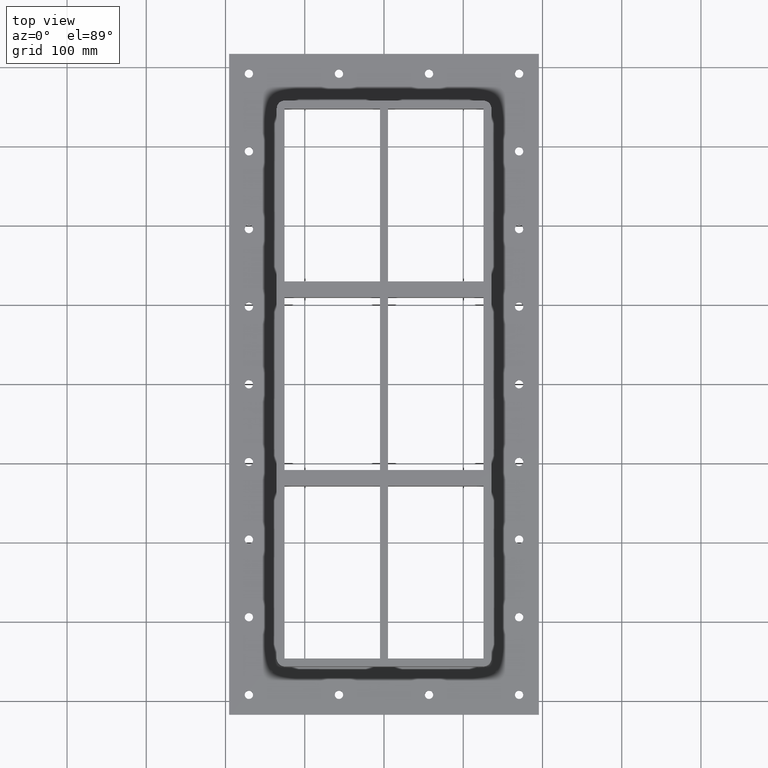
[diagram: clean part render]
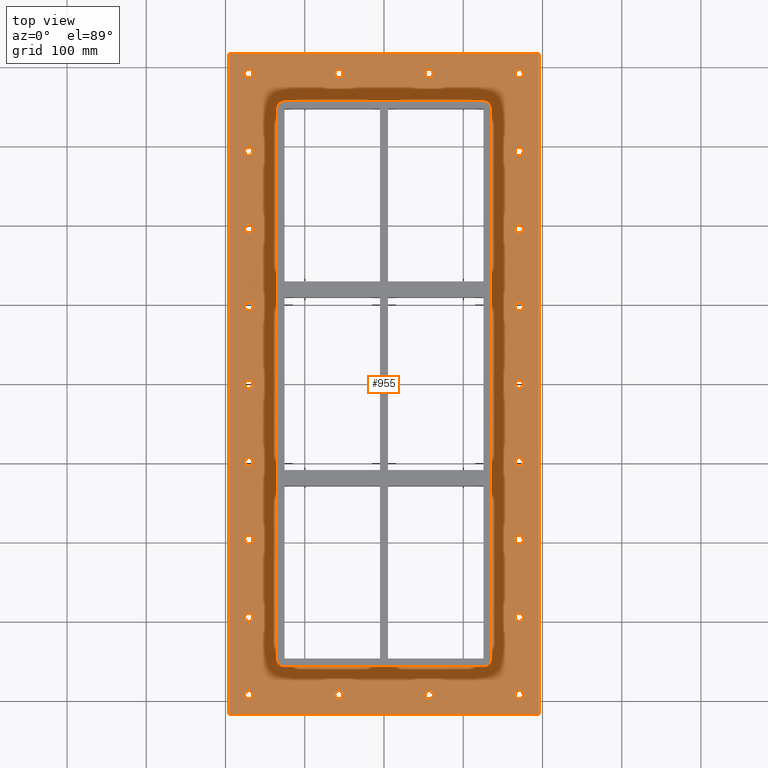
[diagram: same view with one face highlighted and labeled with its STEP entity id]
A machine part, top view. The second image highlights one B-rep face of the part: STEP entity #955.
In plain terms, the highlighted planar face has unit normal (0, 0, 1).
Its self-contained STEP definition (entity closure, byte-faithful):
#84=CARTESIAN_POINT('',(-51.583333333333314,-392.0,-17.000000000000007));
#85=VERTEX_POINT('',#84);
#86=CARTESIAN_POINT('',(-56.8333333333333,-392.0,-17.000000000000028));
#87=DIRECTION('',(0.0,0.0,-1.0));
#88=DIRECTION('',(1.0,0.0,0.0));
#89=AXIS2_PLACEMENT_3D('',#86,#87,#88);
#90=CIRCLE('',#89,5.25);
#91=EDGE_CURVE('',#85,#85,#90,.T.);
#112=CARTESIAN_POINT('',(62.083333333333357,-392.0,-17.000000000000007));
#113=VERTEX_POINT('',#112);
#114=CARTESIAN_POINT('',(56.833333333333371,-392.0,-17.000000000000028));
#115=DIRECTION('',(0.0,0.0,-1.0));
#116=DIRECTION('',(1.0,0.0,0.0));
#117=AXIS2_PLACEMENT_3D('',#114,#115,#116);
#118=CIRCLE('',#117,5.25);
#119=EDGE_CURVE('',#113,#113,#118,.T.);
#140=CARTESIAN_POINT('',(62.083333333333215,392.0,-17.000000000000007));
#141=VERTEX_POINT('',#140);
#142=CARTESIAN_POINT('',(56.833333333333229,392.0,-17.000000000000028));
#143=DIRECTION('',(0.0,0.0,-1.0));
#144=DIRECTION('',(1.0,0.0,0.0));
#145=AXIS2_PLACEMENT_3D('',#142,#143,#144);
#146=CIRCLE('',#145,5.25);
#147=EDGE_CURVE('',#141,#141,#146,.T.);
#168=CARTESIAN_POINT('',(-51.583333333333456,392.0,-17.000000000000007));
#169=VERTEX_POINT('',#168);
#170=CARTESIAN_POINT('',(-56.833333333333442,392.0,-17.000000000000028));
#171=DIRECTION('',(0.0,0.0,-1.0));
#172=DIRECTION('',(1.0,0.0,0.0));
#173=AXIS2_PLACEMENT_3D('',#170,#171,#172);
#174=CIRCLE('',#173,5.25);
#175=EDGE_CURVE('',#169,#169,#174,.T.);
#196=CARTESIAN_POINT('',(175.75,-294.00000000000011,-17.000000000000007));
#197=VERTEX_POINT('',#196);
#198=CARTESIAN_POINT('',(170.5,-294.00000000000011,-17.000000000000028));
#199=DIRECTION('',(0.0,0.0,-1.0));
#200=DIRECTION('',(1.0,0.0,0.0));
#201=AXIS2_PLACEMENT_3D('',#198,#199,#200);
#202=CIRCLE('',#201,5.25);
#203=EDGE_CURVE('',#197,#197,#202,.T.);
#224=CARTESIAN_POINT('',(175.75,-195.99999999999997,-17.000000000000007));
#225=VERTEX_POINT('',#224);
#226=CARTESIAN_POINT('',(170.5,-195.99999999999997,-17.000000000000028));
#227=DIRECTION('',(0.0,0.0,-1.0));
#228=DIRECTION('',(1.0,0.0,0.0));
#229=AXIS2_PLACEMENT_3D('',#226,#227,#228);
#230=CIRCLE('',#229,5.25);
#231=EDGE_CURVE('',#225,#225,#230,.T.);
#252=CARTESIAN_POINT('',(175.74999999999994,-98.0,-17.000000000000007));
#253=VERTEX_POINT('',#252);
#254=CARTESIAN_POINT('',(170.49999999999997,-98.0,-17.000000000000028));
#255=DIRECTION('',(0.0,0.0,-1.0));
#256=DIRECTION('',(1.0,0.0,0.0));
#257=AXIS2_PLACEMENT_3D('',#254,#255,#256);
#258=CIRCLE('',#257,5.25);
#259=EDGE_CURVE('',#253,#253,#258,.T.);
#280=CARTESIAN_POINT('',(175.74999999999994,0.0,-17.000000000000007));
#281=VERTEX_POINT('',#280);
#282=CARTESIAN_POINT('',(170.49999999999997,0.0,-17.000000000000028));
#283=DIRECTION('',(0.0,0.0,-1.0));
#284=DIRECTION('',(1.0,0.0,0.0));
#285=AXIS2_PLACEMENT_3D('',#282,#283,#284);
#286=CIRCLE('',#285,5.25);
#287=EDGE_CURVE('',#281,#281,#286,.T.);
#308=CARTESIAN_POINT('',(175.74999999999994,98.0,-17.000000000000007));
#309=VERTEX_POINT('',#308);
#310=CARTESIAN_POINT('',(170.49999999999997,98.0,-17.000000000000028));
#311=DIRECTION('',(0.0,0.0,-1.0));
#312=DIRECTION('',(1.0,0.0,0.0));
#313=AXIS2_PLACEMENT_3D('',#310,#311,#312);
#314=CIRCLE('',#313,5.25);
#315=EDGE_CURVE('',#309,#309,#314,.T.);
#336=CARTESIAN_POINT('',(175.74999999999991,196.0,-17.000000000000007));
#337=VERTEX_POINT('',#336);
#338=CARTESIAN_POINT('',(170.49999999999994,196.0,-17.000000000000028));
#339=DIRECTION('',(0.0,0.0,-1.0));
#340=DIRECTION('',(1.0,0.0,0.0));
#341=AXIS2_PLACEMENT_3D('',#338,#339,#340);
#342=CIRCLE('',#341,5.25);
#343=EDGE_CURVE('',#337,#337,#342,.T.);
#364=CARTESIAN_POINT('',(175.74999999999991,294.0,-17.000000000000007));
#365=VERTEX_POINT('',#364);
#366=CARTESIAN_POINT('',(170.49999999999994,294.0,-17.000000000000028));
#367=DIRECTION('',(0.0,0.0,-1.0));
#368=DIRECTION('',(1.0,0.0,0.0));
#369=AXIS2_PLACEMENT_3D('',#366,#367,#368);
#370=CIRCLE('',#369,5.25);
#371=EDGE_CURVE('',#365,#365,#370,.T.);
#392=CARTESIAN_POINT('',(-165.25000000000009,294.00000000000011,-17.000000000000007));
#393=VERTEX_POINT('',#392);
#394=CARTESIAN_POINT('',(-170.50000000000009,294.00000000000011,-17.000000000000028));
#395=DIRECTION('',(0.0,0.0,-1.0));
#396=DIRECTION('',(1.0,0.0,0.0));
#397=AXIS2_PLACEMENT_3D('',#394,#395,#396);
#398=CIRCLE('',#397,5.25);
#399=EDGE_CURVE('',#393,#393,#398,.T.);
#420=CARTESIAN_POINT('',(-165.25000000000006,195.99999999999997,-17.000000000000007));
#421=VERTEX_POINT('',#420);
#422=CARTESIAN_POINT('',(-170.50000000000006,195.99999999999997,-17.000000000000028));
#423=DIRECTION('',(0.0,0.0,-1.0));
#424=DIRECTION('',(1.0,0.0,0.0));
#425=AXIS2_PLACEMENT_3D('',#422,#423,#424);
#426=CIRCLE('',#425,5.25);
#427=EDGE_CURVE('',#421,#421,#426,.T.);
#448=CARTESIAN_POINT('',(-165.25000000000006,98.0,-17.000000000000007));
#449=VERTEX_POINT('',#448);
#450=CARTESIAN_POINT('',(-170.50000000000006,98.0,-17.000000000000028));
#451=DIRECTION('',(0.0,0.0,-1.0));
#452=DIRECTION('',(1.0,0.0,0.0));
#453=AXIS2_PLACEMENT_3D('',#450,#451,#452);
#454=CIRCLE('',#453,5.25);
#455=EDGE_CURVE('',#449,#449,#454,.T.);
#476=CARTESIAN_POINT('',(-165.25000000000003,0.0,-17.000000000000007));
#477=VERTEX_POINT('',#476);
#478=CARTESIAN_POINT('',(-170.5,0.0,-17.000000000000028));
#479=DIRECTION('',(0.0,0.0,-1.0));
#480=DIRECTION('',(1.0,0.0,0.0));
#481=AXIS2_PLACEMENT_3D('',#478,#479,#480);
#482=CIRCLE('',#481,5.25);
#483=EDGE_CURVE('',#477,#477,#482,.T.);
#504=CARTESIAN_POINT('',(-165.25000000000003,-98.0,-17.000000000000007));
#505=VERTEX_POINT('',#504);
#506=CARTESIAN_POINT('',(-170.5,-98.0,-17.000000000000028));
#507=DIRECTION('',(0.0,0.0,-1.0));
#508=DIRECTION('',(1.0,0.0,0.0));
#509=AXIS2_PLACEMENT_3D('',#506,#507,#508);
#510=CIRCLE('',#509,5.25);
#511=EDGE_CURVE('',#505,#505,#510,.T.);
#532=CARTESIAN_POINT('',(-165.25,-196.0,-17.000000000000007));
#533=VERTEX_POINT('',#532);
#534=CARTESIAN_POINT('',(-170.49999999999997,-196.0,-17.000000000000028));
#535=DIRECTION('',(0.0,0.0,-1.0));
#536=DIRECTION('',(1.0,0.0,0.0));
#537=AXIS2_PLACEMENT_3D('',#534,#535,#536);
#538=CIRCLE('',#537,5.25);
#539=EDGE_CURVE('',#533,#533,#538,.T.);
#560=CARTESIAN_POINT('',(-165.25,-294.0,-17.000000000000007));
#561=VERTEX_POINT('',#560);
#562=CARTESIAN_POINT('',(-170.49999999999997,-294.0,-17.000000000000028));
#563=DIRECTION('',(0.0,0.0,-1.0));
#564=DIRECTION('',(1.0,0.0,0.0));
#565=AXIS2_PLACEMENT_3D('',#562,#563,#564);
#566=CIRCLE('',#565,5.25);
#567=EDGE_CURVE('',#561,#561,#566,.T.);
#588=CARTESIAN_POINT('',(-165.25000000000011,392.0,-17.000000000000007));
#589=VERTEX_POINT('',#588);
#590=CARTESIAN_POINT('',(-170.50000000000011,392.0,-17.000000000000028));
#591=DIRECTION('',(0.0,0.0,-1.0));
#592=DIRECTION('',(1.0,0.0,0.0));
#593=AXIS2_PLACEMENT_3D('',#590,#591,#592);
#594=CIRCLE('',#593,5.25);
#595=EDGE_CURVE('',#589,#589,#594,.T.);
#616=CARTESIAN_POINT('',(175.74999999999991,392.0,-17.000000000000007));
#617=VERTEX_POINT('',#616);
#618=CARTESIAN_POINT('',(170.49999999999994,392.0,-17.000000000000028));
#619=DIRECTION('',(0.0,0.0,-1.0));
#620=DIRECTION('',(1.0,0.0,0.0));
#621=AXIS2_PLACEMENT_3D('',#618,#619,#620);
#622=CIRCLE('',#621,5.25);
#623=EDGE_CURVE('',#617,#617,#622,.T.);
#644=CARTESIAN_POINT('',(175.75000000000003,-392.0,-17.000000000000007));
#645=VERTEX_POINT('',#644);
#646=CARTESIAN_POINT('',(170.50000000000006,-392.0,-17.000000000000028));
#647=DIRECTION('',(0.0,0.0,-1.0));
#648=DIRECTION('',(1.0,0.0,0.0));
#649=AXIS2_PLACEMENT_3D('',#646,#647,#648);
#650=CIRCLE('',#649,5.25);
#651=EDGE_CURVE('',#645,#645,#650,.T.);
#672=CARTESIAN_POINT('',(-165.25,-392.0,-17.000000000000007));
#673=VERTEX_POINT('',#672);
#674=CARTESIAN_POINT('',(-170.49999999999997,-392.0,-17.000000000000028));
#675=DIRECTION('',(0.0,0.0,-1.0));
#676=DIRECTION('',(1.0,0.0,0.0));
#677=AXIS2_PLACEMENT_3D('',#674,#675,#676);
#678=CIRCLE('',#677,5.25);
#679=EDGE_CURVE('',#673,#673,#678,.T.);
#699=CARTESIAN_POINT('',(-195.49999999999997,-417.0,-17.0));
#700=VERTEX_POINT('',#699);
#707=CARTESIAN_POINT('',(-195.50000000000011,417.0,-17.0));
#708=VERTEX_POINT('',#707);
#709=CARTESIAN_POINT('',(-195.50000000000011,417.0,-17.0));
#710=DIRECTION('',(0.0,-1.0,0.0));
#711=VECTOR('',#710,834.0);
#712=LINE('',#709,#711);
#713=EDGE_CURVE('',#708,#700,#712,.T.);
#738=CARTESIAN_POINT('',(195.49999999999994,417.0,-17.0));
#739=VERTEX_POINT('',#738);
#740=CARTESIAN_POINT('',(195.5,417.0,-17.0));
#741=DIRECTION('',(-1.0,0.0,0.0));
#742=VECTOR('',#741,391.00000000000011);
#743=LINE('',#740,#742);
#744=EDGE_CURVE('',#739,#708,#743,.T.);
#769=CARTESIAN_POINT('',(195.50000000000006,-417.0,-17.0));
#770=VERTEX_POINT('',#769);
#771=CARTESIAN_POINT('',(195.50000000000006,-417.0,-17.0));
#772=DIRECTION('',(0.0,1.0,0.0));
#773=VECTOR('',#772,834.0);
#774=LINE('',#771,#773);
#775=EDGE_CURVE('',#770,#739,#774,.T.);
#798=CARTESIAN_POINT('',(-195.49999999999994,-417.0,-17.0));
#799=DIRECTION('',(1.0,0.0,0.0));
#800=VECTOR('',#799,391.0);
#801=LINE('',#798,#800);
#802=EDGE_CURVE('',#700,#770,#801,.T.);
#808=CARTESIAN_POINT('',(-4.176251E-014,0.0,-17.000000000000007));
#809=DIRECTION('',(0.0,0.0,1.0));
#810=DIRECTION('',(1.0,0.0,0.0));
#811=AXIS2_PLACEMENT_3D('',#808,#809,#810);
#812=PLANE('',#811);
#813=ORIENTED_EDGE('',*,*,#802,.T.);
#814=ORIENTED_EDGE('',*,*,#775,.T.);
#815=ORIENTED_EDGE('',*,*,#744,.T.);
#816=ORIENTED_EDGE('',*,*,#713,.T.);
#817=EDGE_LOOP('',(#813,#814,#815,#816));
#818=FACE_OUTER_BOUND('',#817,.T.);
#819=ORIENTED_EDGE('',*,*,#91,.T.);
#820=EDGE_LOOP('',(#819));
#821=FACE_BOUND('',#820,.T.);
#822=ORIENTED_EDGE('',*,*,#119,.T.);
#823=EDGE_LOOP('',(#822));
#824=FACE_BOUND('',#823,.T.);
#825=ORIENTED_EDGE('',*,*,#147,.T.);
#826=EDGE_LOOP('',(#825));
#827=FACE_BOUND('',#826,.T.);
#828=ORIENTED_EDGE('',*,*,#175,.T.);
#829=EDGE_LOOP('',(#828));
#830=FACE_BOUND('',#829,.T.);
#831=ORIENTED_EDGE('',*,*,#203,.T.);
#832=EDGE_LOOP('',(#831));
#833=FACE_BOUND('',#832,.T.);
#834=ORIENTED_EDGE('',*,*,#231,.T.);
#835=EDGE_LOOP('',(#834));
#836=FACE_BOUND('',#835,.T.);
#837=ORIENTED_EDGE('',*,*,#259,.T.);
#838=EDGE_LOOP('',(#837));
#839=FACE_BOUND('',#838,.T.);
#840=ORIENTED_EDGE('',*,*,#287,.T.);
#841=EDGE_LOOP('',(#840));
#842=FACE_BOUND('',#841,.T.);
#843=ORIENTED_EDGE('',*,*,#315,.T.);
#844=EDGE_LOOP('',(#843));
#845=FACE_BOUND('',#844,.T.);
#846=ORIENTED_EDGE('',*,*,#343,.T.);
#847=EDGE_LOOP('',(#846));
#848=FACE_BOUND('',#847,.T.);
#849=ORIENTED_EDGE('',*,*,#371,.T.);
#850=EDGE_LOOP('',(#849));
#851=FACE_BOUND('',#850,.T.);
#852=ORIENTED_EDGE('',*,*,#399,.T.);
#853=EDGE_LOOP('',(#852));
#854=FACE_BOUND('',#853,.T.);
#855=ORIENTED_EDGE('',*,*,#427,.T.);
#856=EDGE_LOOP('',(#855));
#857=FACE_BOUND('',#856,.T.);
#858=ORIENTED_EDGE('',*,*,#455,.T.);
#859=EDGE_LOOP('',(#858));
#860=FACE_BOUND('',#859,.T.);
#861=ORIENTED_EDGE('',*,*,#483,.T.);
#862=EDGE_LOOP('',(#861));
#863=FACE_BOUND('',#862,.T.);
#864=ORIENTED_EDGE('',*,*,#511,.T.);
#865=EDGE_LOOP('',(#864));
#866=FACE_BOUND('',#865,.T.);
#867=ORIENTED_EDGE('',*,*,#539,.T.);
#868=EDGE_LOOP('',(#867));
#869=FACE_BOUND('',#868,.T.);
#870=ORIENTED_EDGE('',*,*,#567,.T.);
#871=EDGE_LOOP('',(#870));
#872=FACE_BOUND('',#871,.T.);
#873=ORIENTED_EDGE('',*,*,#595,.T.);
#874=EDGE_LOOP('',(#873));
#875=FACE_BOUND('',#874,.T.);
#876=ORIENTED_EDGE('',*,*,#623,.T.);
#877=EDGE_LOOP('',(#876));
#878=FACE_BOUND('',#877,.T.);
#879=ORIENTED_EDGE('',*,*,#651,.T.);
#880=EDGE_LOOP('',(#879));
#881=FACE_BOUND('',#880,.T.);
#882=ORIENTED_EDGE('',*,*,#679,.T.);
#883=EDGE_LOOP('',(#882));
#884=FACE_BOUND('',#883,.T.);
#885=CARTESIAN_POINT('',(135.49999999999997,347.0,-17.0));
#886=VERTEX_POINT('',#885);
#887=CARTESIAN_POINT('',(125.49999999999996,357.0,-17.0));
#888=VERTEX_POINT('',#887);
#889=CARTESIAN_POINT('',(125.4999999999999,347.00000000000017,-17.000000000000007));
#890=DIRECTION('',(0.0,0.0,1.0));
#891=DIRECTION('',(0.707106781186547,0.707106781186547,0.0));
#892=AXIS2_PLACEMENT_3D('',#889,#890,#891);
#893=CIRCLE('',#892,9.999999999999998);
#894=EDGE_CURVE('',#886,#888,#893,.T.);
#895=ORIENTED_EDGE('',*,*,#894,.F.);
#896=CARTESIAN_POINT('',(135.50000000000009,-347.0,-17.0));
#897=VERTEX_POINT('',#896);
#898=CARTESIAN_POINT('',(135.50000000000003,-347.0,-17.000000000000007));
#899=DIRECTION('',(0.0,1.0,0.0));
#900=VECTOR('',#899,694.0);
#901=LINE('',#898,#900);
#902=EDGE_CURVE('',#897,#886,#901,.T.);
#903=ORIENTED_EDGE('',*,*,#902,.F.);
#904=CARTESIAN_POINT('',(125.50000000000009,-357.0,-17.0));
#905=VERTEX_POINT('',#904);
#906=CARTESIAN_POINT('',(125.50000000000004,-346.99999999999989,-17.000000000000007));
#907=DIRECTION('',(0.0,0.0,1.0));
#908=DIRECTION('',(0.707106781186547,-0.707106781186547,0.0));
#909=AXIS2_PLACEMENT_3D('',#906,#907,#908);
#910=CIRCLE('',#909,9.999999999999998);
#911=EDGE_CURVE('',#905,#897,#910,.T.);
#912=ORIENTED_EDGE('',*,*,#911,.F.);
#913=CARTESIAN_POINT('',(-125.49999999999991,-357.0,-17.0));
#914=VERTEX_POINT('',#913);
#915=CARTESIAN_POINT('',(-125.49999999999991,-356.99999999999989,-17.000000000000007));
#916=DIRECTION('',(1.0,0.0,0.0));
#917=VECTOR('',#916,250.99999999999997);
#918=LINE('',#915,#917);
#919=EDGE_CURVE('',#914,#905,#918,.T.);
#920=ORIENTED_EDGE('',*,*,#919,.F.);
#921=CARTESIAN_POINT('',(-135.5,-347.0,-17.0));
#922=VERTEX_POINT('',#921);
#923=CARTESIAN_POINT('',(-125.4999999999999,-346.99999999999989,-17.000000000000007));
#924=DIRECTION('',(0.0,0.0,1.0));
#925=DIRECTION('',(-0.707106781186547,-0.707106781186547,0.0));
#926=AXIS2_PLACEMENT_3D('',#923,#924,#925);
#927=CIRCLE('',#926,9.999999999999998);
#928=EDGE_CURVE('',#922,#914,#927,.T.);
#929=ORIENTED_EDGE('',*,*,#928,.F.);
#930=CARTESIAN_POINT('',(-135.50000000000006,347.0,-17.0));
#931=VERTEX_POINT('',#930);
#932=CARTESIAN_POINT('',(-135.50000000000011,347.0,-17.000000000000007));
#933=DIRECTION('',(0.0,-1.0,0.0));
#934=VECTOR('',#933,694.0);
#935=LINE('',#932,#934);
#936=EDGE_CURVE('',#931,#922,#935,.T.);
#937=ORIENTED_EDGE('',*,*,#936,.F.);
#938=CARTESIAN_POINT('',(-125.50000000000006,357.0,-17.0));
#939=VERTEX_POINT('',#938);
#940=CARTESIAN_POINT('',(-125.50000000000011,347.00000000000017,-17.000000000000007));
#941=DIRECTION('',(0.0,0.0,1.0));
#942=DIRECTION('',(-0.707106781186547,0.707106781186547,0.0));
#943=AXIS2_PLACEMENT_3D('',#940,#941,#942);
#944=CIRCLE('',#943,9.999999999999998);
#945=EDGE_CURVE('',#939,#931,#944,.T.);
#946=ORIENTED_EDGE('',*,*,#945,.F.);
#947=CARTESIAN_POINT('',(125.49999999999994,357.00000000000017,-17.000000000000007));
#948=DIRECTION('',(-1.0,0.0,0.0));
#949=VECTOR('',#948,251.0);
#950=LINE('',#947,#949);
#951=EDGE_CURVE('',#888,#939,#950,.T.);
#952=ORIENTED_EDGE('',*,*,#951,.F.);
#953=EDGE_LOOP('',(#895,#903,#912,#920,#929,#937,#946,#952));
#954=FACE_BOUND('',#953,.T.);
#955=ADVANCED_FACE('',(#818,#821,#824,#827,#830,#833,#836,#839,#842,#845,#848,#851,#854,#857,#860,#863,#866,#869,#872,#875,#878,#881,#884,#954),#812,.T.);